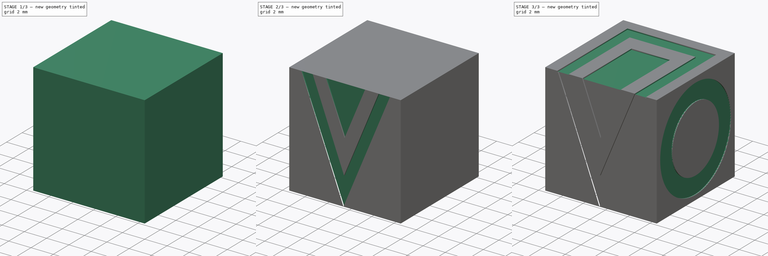
[diagram: build sequence overview — one tinted view per stage of 3, left to right]
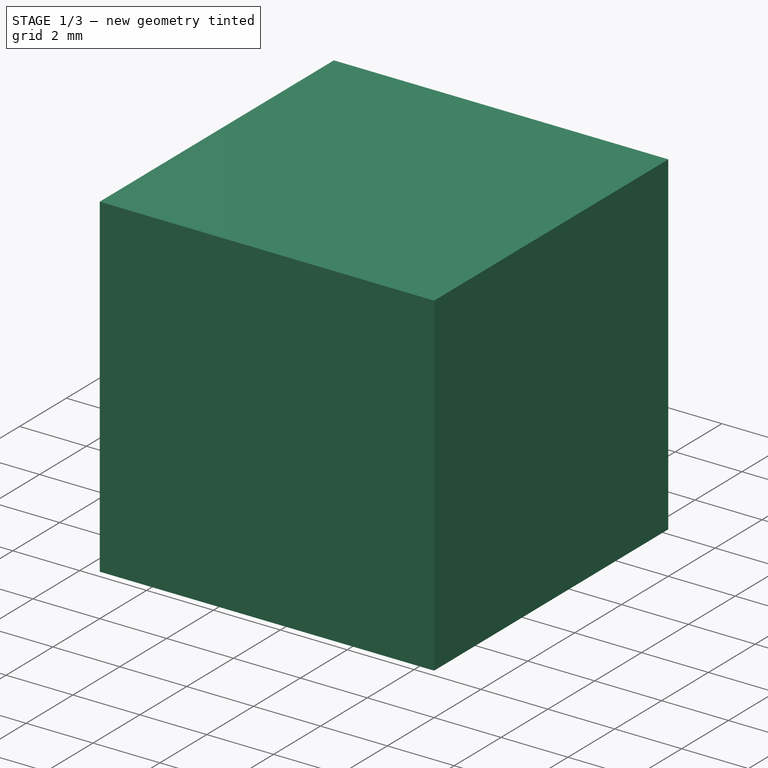
[diagram: stage 1 of 3 — iso view after this stage's code; geometry added in this stage tinted green]
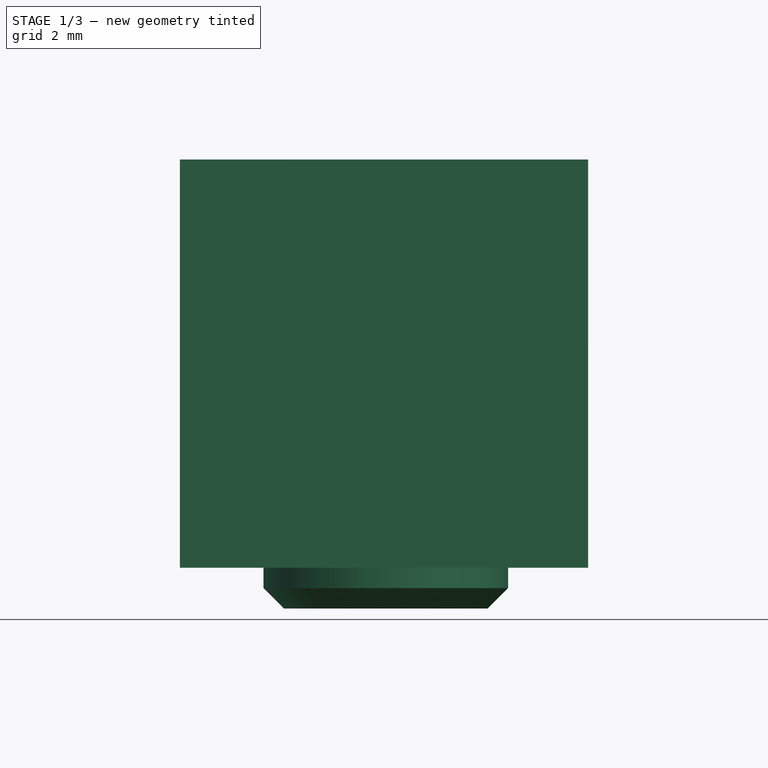
[diagram: stage 1 of 3 — front view after this stage's code; geometry added in this stage tinted green]
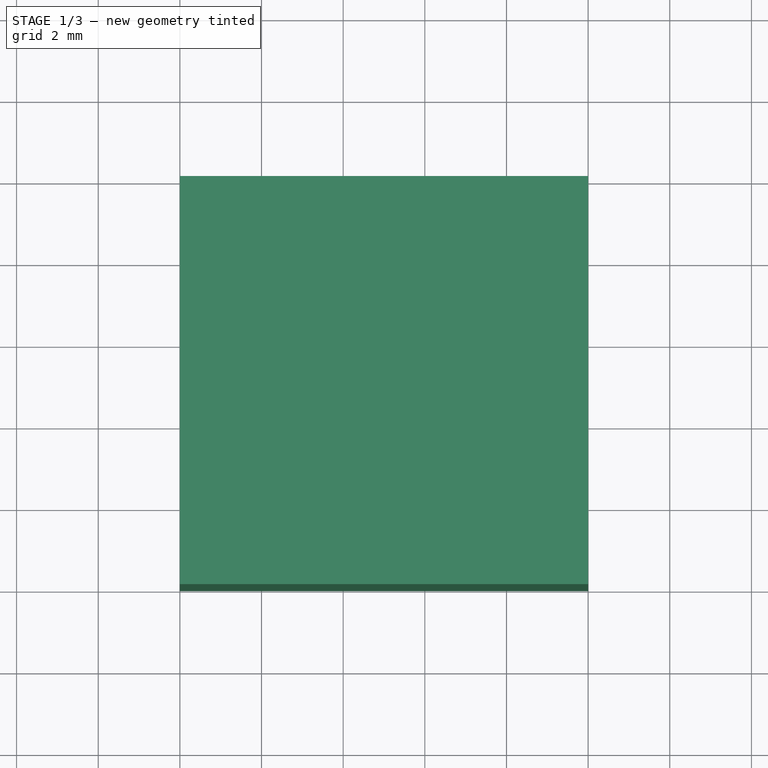
[diagram: stage 1 of 3 — top view after this stage's code; geometry added in this stage tinted green]
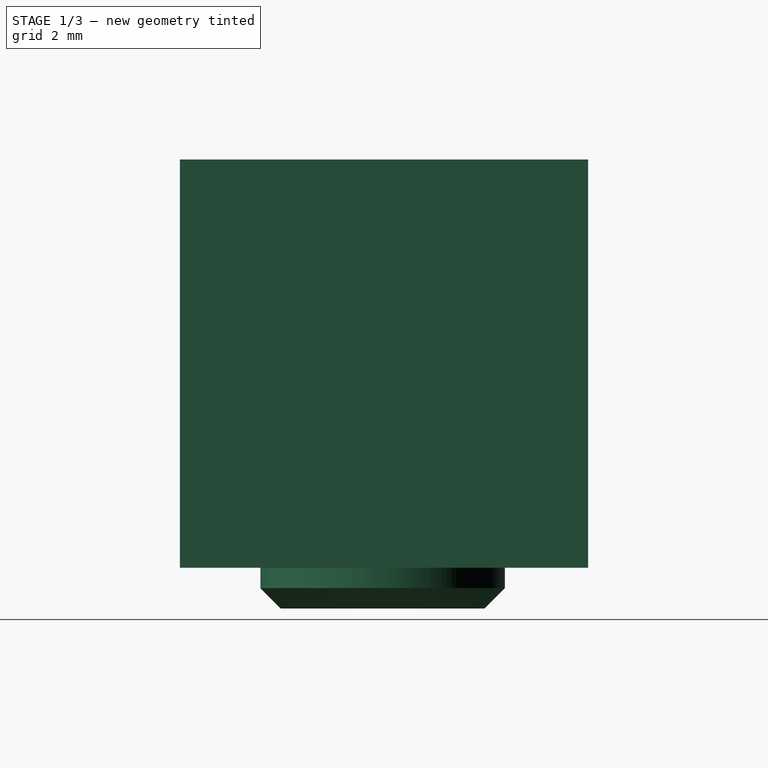
[diagram: stage 1 of 3 — right view after this stage's code; geometry added in this stage tinted green]
FCSTD DOCUMENT  (FreeCAD 0.16R6706 (Git))
Label: totem-head
License: All rights reserved
LicenseURL: http://en.wikipedia.org/wiki/All_rights_reserved
objects: Sketcher::SketchObject×6, PartDesign::Pocket×5, Part::Box×1, PartDesign::Pad×1, PartDesign::Chamfer×1
note: 20 computed .brp shape members not serialized (recipe doc carries the construction recipe); baked Part::Feature solids carry a one-line shape summary decoded from their .brp

FEATURE [Part::Box] Box  label="Cube"
  Height = 10
  Length = 10
  Width = 10
FEATURE [Sketcher::SketchObject] Sketch005
  Placement = pos=(0,0,0) rot=(1,0,0;3.14159rad)
  Support = -> Box [Face5]
  sketch-geometry (1):
    g0: Circle CenterX=5.04311 CenterY=-4.96659 CenterZ=0 NormalX=0 NormalY=0 NormalZ=1 Radius=2.99585
FEATURE [PartDesign::Pad] Pad
  Length = 1
  Length2 = 100
  Sketch = -> Sketch005
  Type = 0
FEATURE [PartDesign::Chamfer] Chamfer
  Base = -> Pad [Edge15]
  Size = 0.5
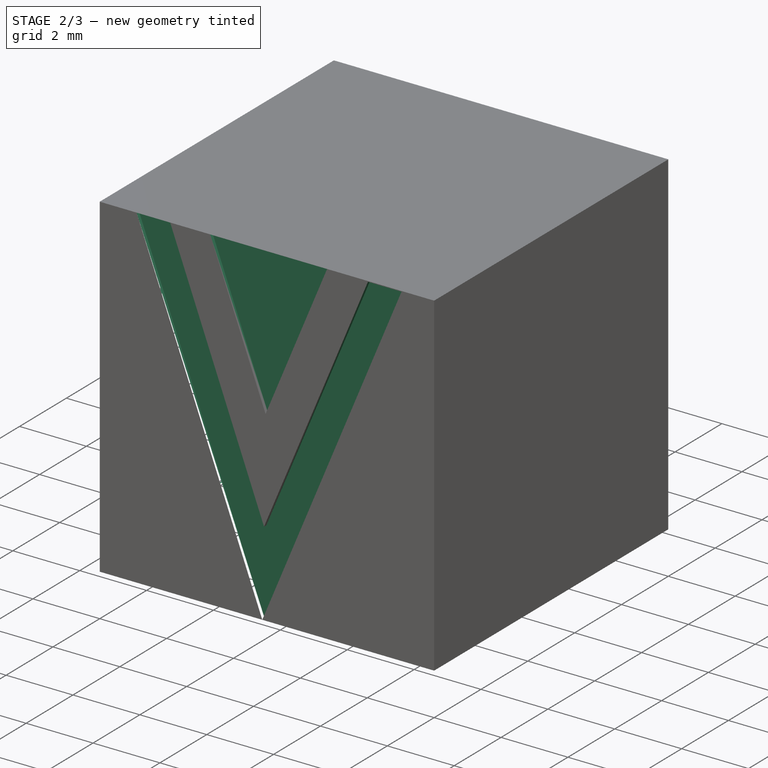
[diagram: stage 2 of 3 — iso view after this stage's code; geometry added in this stage tinted green]
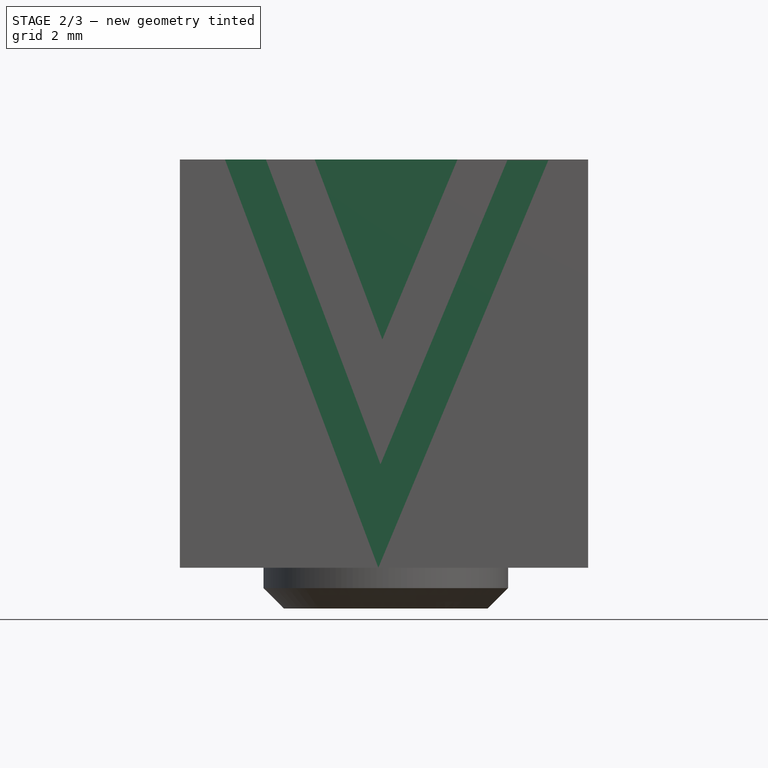
[diagram: stage 2 of 3 — front view after this stage's code; geometry added in this stage tinted green]
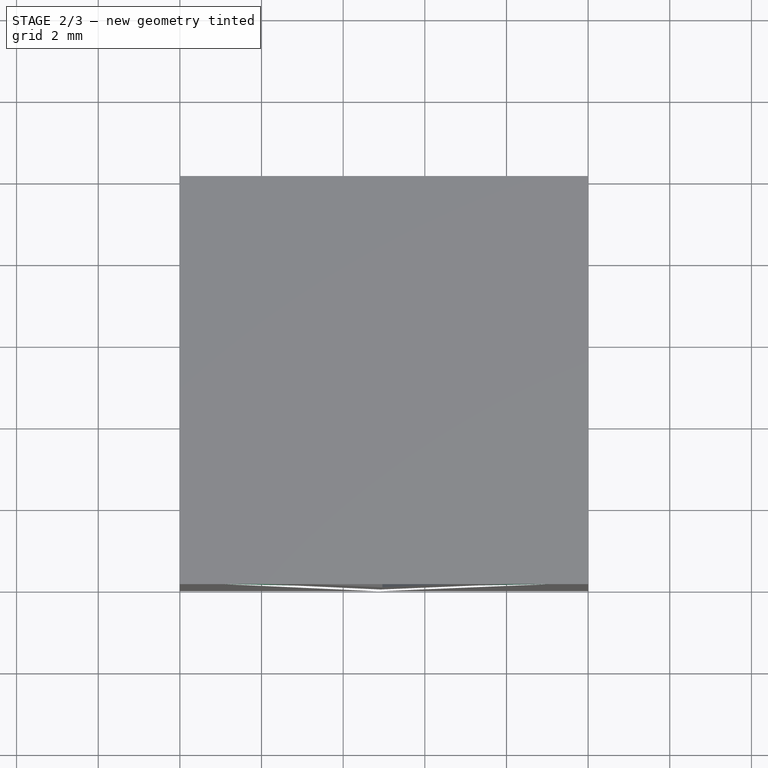
[diagram: stage 2 of 3 — top view after this stage's code; geometry added in this stage tinted green]
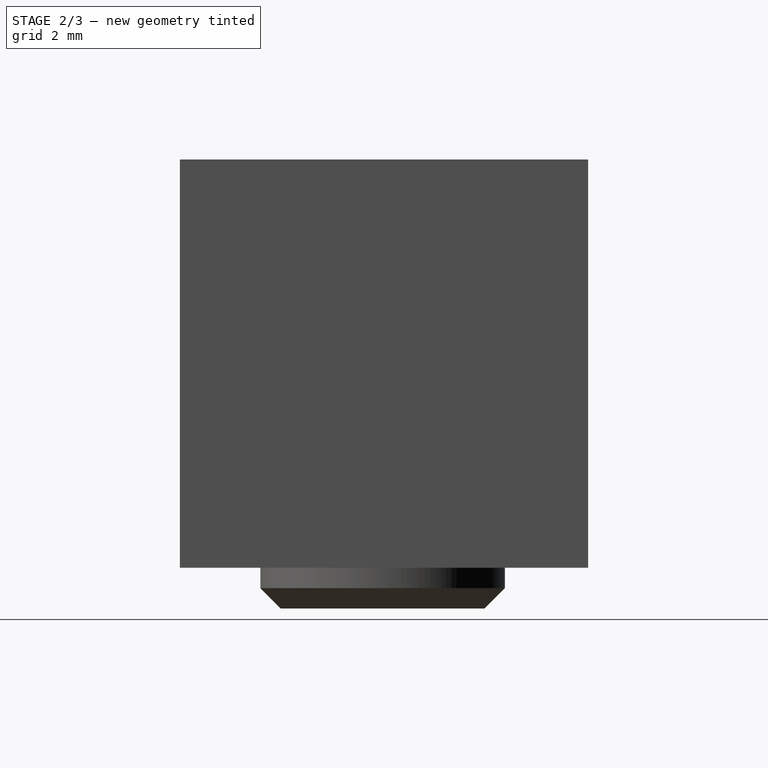
[diagram: stage 2 of 3 — right view after this stage's code; geometry added in this stage tinted green]
FEATURE [Sketcher::SketchObject] Sketch  label="Front"
  Placement = pos=(0,0,0) rot=(1,0,0;1.5708rad)
  Support = -> Chamfer [Face7]
  sketch-geometry (9):
    g0: LineSegment StartX=1.10375 StartY=9.99866 StartZ=0 EndX=4.86113 EndY=0 EndZ=0
    g1: LineSegment StartX=4.86113 StartY=0 StartZ=0 EndX=9.02559 EndY=9.98196 EndZ=0
    g2: LineSegment StartX=9.02559 StartY=9.98196 StartZ=0 EndX=8.02179 EndY=9.98196 EndZ=0
    g3: LineSegment StartX=8.02179 StartY=9.98196 StartZ=0 EndX=4.91355 EndY=2.53169 EndZ=0
    g4: LineSegment StartX=4.91355 StartY=2.53169 StartZ=0 EndX=2.10755 EndY=9.99866 EndZ=0
    g5: LineSegment StartX=2.10755 StartY=9.99866 StartZ=0 EndX=1.10375 EndY=9.99866 EndZ=0
    g6: LineSegment StartX=3.30286 StartY=9.99868 StartZ=0 EndX=4.95954 EndY=5.59015 EndZ=0
    g7: LineSegment StartX=4.95954 StartY=5.59015 StartZ=0 EndX=6.79877 EndY=9.99868 EndZ=0
    g8: LineSegment StartX=6.79877 StartY=9.99868 StartZ=0 EndX=3.30286 EndY=9.99868 EndZ=0
  constraints (18):
    c: PointOnObject(g0,g-1)
    c: Coincident(g0,g1)
    c: Coincident(g1,g2)
    c: Horizontal(g2)
    c: Coincident(g2,g3)
    c: Coincident(g3,g4)
    c: Coincident(g4,g5)
    c: Coincident(g5,g0)
    c: Horizontal(g5)
    c: Coincident(g6,g7)
    c: Coincident(g7,g8)
    c: Coincident(g8,g6)
    c: Horizontal(g8)
    c: Equal(g5,g2)
    c: Parallel(g4,g0)
    c: Parallel(g3,g1)
    c: Parallel(g6,g4)
    c: Parallel(g7,g3)
FEATURE [PartDesign::Pocket] Pocket
  Length = 0.1
  Sketch = -> Sketch
  Type = 0
FEATURE [Sketcher::SketchObject] Sketch002  label="Side A"
  Placement = pos=(0,0,0) rot=(0.57735,-0.57735,-0.57735;2.0944rad)
  Support = -> Pocket [Face5]
  sketch-geometry (2):
    g0: Circle CenterX=-5.03441 CenterY=4.9752 CenterZ=0 NormalX=0 NormalY=0 NormalZ=1 Radius=4.47581
    g1: Circle CenterX=-5.03441 CenterY=4.9752 CenterZ=0 NormalX=0 NormalY=0 NormalZ=1 Radius=2.99417
  constraints (1):
    c: Coincident(g1,g0)
FEATURE [PartDesign::Pocket] Pocket001
  Length = 0.1
  Sketch = -> Sketch002
  Type = 0
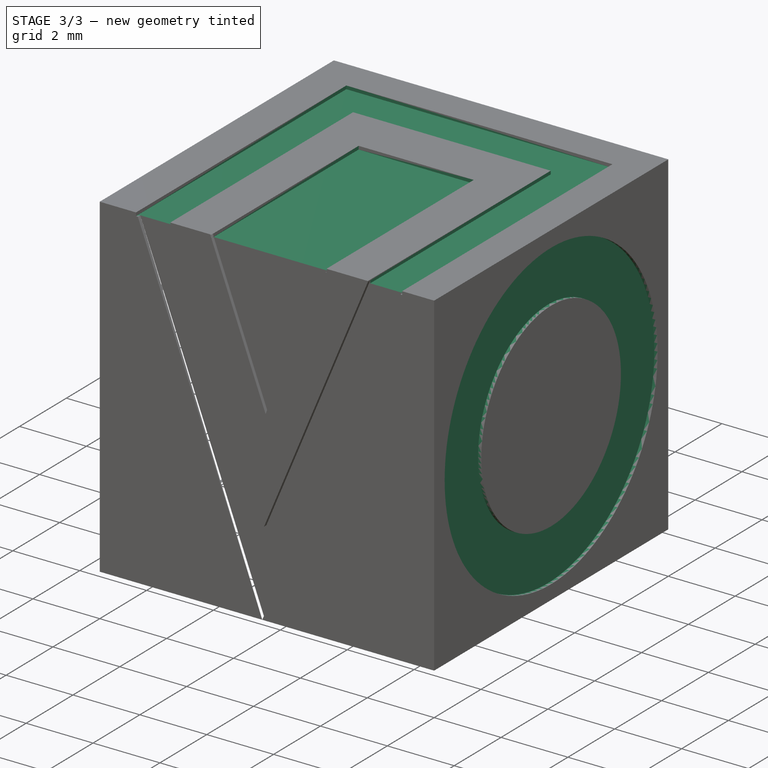
[diagram: stage 3 of 3 — iso view after this stage's code; geometry added in this stage tinted green]
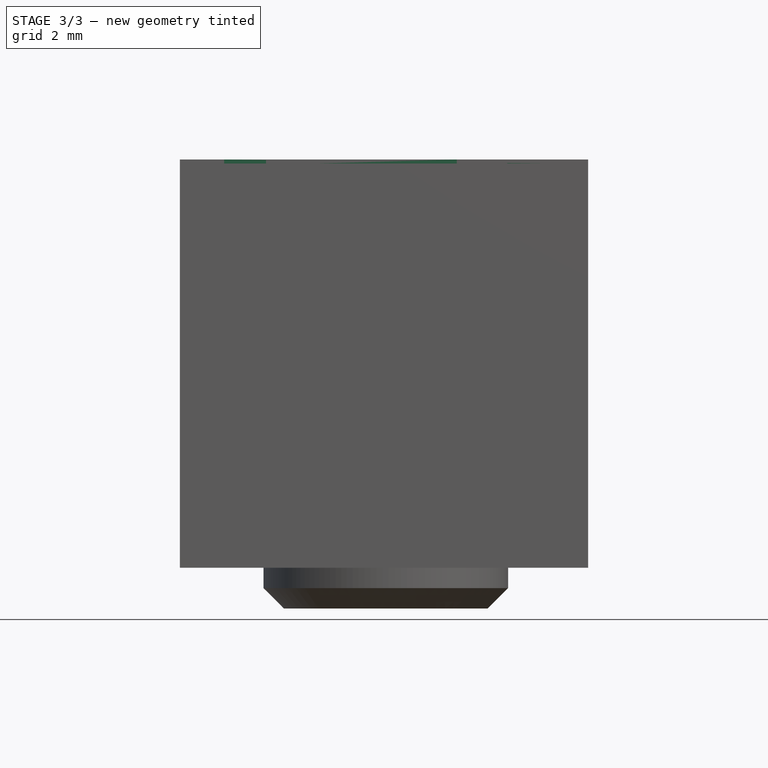
[diagram: stage 3 of 3 — front view after this stage's code; geometry added in this stage tinted green]
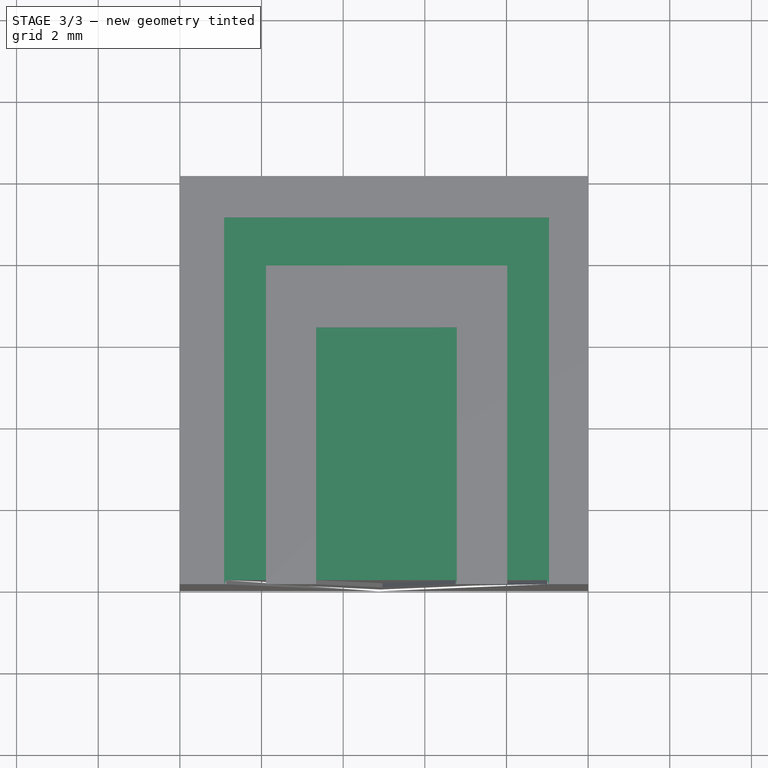
[diagram: stage 3 of 3 — top view after this stage's code; geometry added in this stage tinted green]
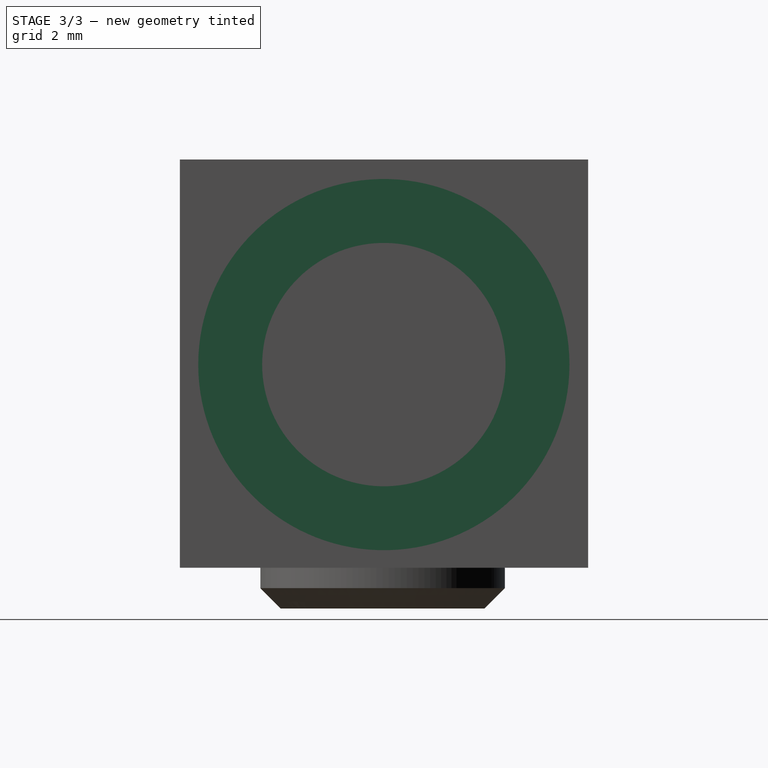
[diagram: stage 3 of 3 — right view after this stage's code; geometry added in this stage tinted green]
FEATURE [Sketcher::SketchObject] Sketch003  label="Side B"
  Placement = pos=(10,0,0) rot=(0.57735,0.57735,0.57735;2.0944rad)
  Support = -> Pocket001 [Face8]
  sketch-geometry (2):
    g0: Circle CenterX=4.99622 CenterY=4.9752 CenterZ=0 NormalX=0 NormalY=0 NormalZ=1 Radius=4.54676
    g1: Circle CenterX=4.99622 CenterY=4.9752 CenterZ=0 NormalX=0 NormalY=0 NormalZ=1 Radius=2.98075
  constraints (1):
    c: Coincident(g1,g0)
FEATURE [PartDesign::Pocket] Pocket002
  Length = 0.1
  Sketch = -> Sketch003
  Type = 0
FEATURE [Sketcher::SketchObject] Sketch001  label="Top"
  Placement = pos=(0,0,10) rot=(0,0,1;0rad)
  Support = -> Pocket002 [Face9]
  sketch-geometry (12):
    g0: LineSegment StartX=1.08487 StartY=0 StartZ=0 EndX=1.08487 EndY=8.98187 EndZ=0
    g1: LineSegment StartX=1.08487 StartY=8.98187 StartZ=0 EndX=9.04254 EndY=8.98187 EndZ=0
    g2: LineSegment StartX=9.04254 StartY=8.98187 StartZ=0 EndX=9.04254 EndY=0 EndZ=0
    g3: LineSegment StartX=9.04254 StartY=0 StartZ=0 EndX=8.01867 EndY=0 EndZ=0
    g4: LineSegment StartX=8.01867 StartY=0 StartZ=0 EndX=8.01867 EndY=7.80777 EndZ=0
    g5: LineSegment StartX=8.01867 StartY=7.80777 StartZ=0 EndX=2.10874 EndY=7.80777 EndZ=0
    g6: LineSegment StartX=2.10874 StartY=7.80777 StartZ=0 EndX=2.10874 EndY=0 EndZ=0
    g7: LineSegment StartX=2.10874 StartY=0 StartZ=0 EndX=1.08487 EndY=0 EndZ=0
    g8: LineSegment StartX=3.33803 StartY=0 StartZ=0 EndX=3.33803 EndY=6.28996 EndZ=0
    g9: LineSegment StartX=3.33803 StartY=6.28996 StartZ=0 EndX=6.7806 EndY=6.28996 EndZ=0
    g10: LineSegment StartX=6.7806 StartY=6.28996 StartZ=0 EndX=6.7806 EndY=0 EndZ=0
    g11: LineSegment StartX=6.7806 StartY=0 StartZ=0 EndX=3.33803 EndY=0 EndZ=0
  constraints (31):
    c: PointOnObject(g0,g-1)
    c: Vertical(g0)
    c: Coincident(g0,g1)
    c: Horizontal(g1)
    c: Coincident(g1,g2)
    c: PointOnObject(g2,g-1)
    c: Vertical(g2)
    c: Coincident(g2,g3)
    c: PointOnObject(g3,g-1)
    c: Horizontal(g3)
    c: Coincident(g3,g4)
    c: Vertical(g4)
    c: Coincident(g4,g5)
    c: Horizontal(g5)
    c: Coincident(g5,g6)
    c: PointOnObject(g6,g-1)
    c: Vertical(g6)
    c: Coincident(g6,g7)
    c: Coincident(g7,g0)
    c: PointOnObject(g8,g-1)
    c: Vertical(g8)
    c: Coincident(g8,g9)
    c: Horizontal(g9)
    c: Coincident(g9,g10)
    c: PointOnObject(g10,g-1)
    c: Coincident(g10,g11)
    c: Coincident(g11,g8)
    c: Vertical(g10)
    c: Equal(g3,g7)
    c: Equal(g9,g11)
    c: Equal(g0,g2)
FEATURE [PartDesign::Pocket] Pocket003
  Length = 0.1
  Sketch = -> Sketch001
  Type = 0
FEATURE [Sketcher::SketchObject] Sketch004  label="Back"
  Placement = pos=(0,10,0) rot=(0,0.707107,0.707107;3.14159rad)
  Support = -> Pocket003 [Face6]
  sketch-geometry (8):
    g0: LineSegment StartX=-9.03172 StartY=0.0203868 StartZ=0 EndX=-9.03172 EndY=9.14773 EndZ=0
    g1: LineSegment StartX=-9.03172 StartY=9.14773 StartZ=0 EndX=-1.13273 EndY=9.14773 EndZ=0
    g2: LineSegment StartX=-1.13273 StartY=9.14773 StartZ=0 EndX=-1.13273 EndY=0.0203868 EndZ=0
    g3: LineSegment StartX=-1.13273 StartY=0.0203868 StartZ=0 EndX=-2.17766 EndY=0.0203868 EndZ=0
    g4: LineSegment StartX=-2.17766 StartY=0.0203868 StartZ=0 EndX=-2.17766 EndY=8.15491 EndZ=0
    g5: LineSegment StartX=-2.17766 StartY=8.15491 StartZ=0 EndX=-7.98678 EndY=8.15491 EndZ=0
    g6: LineSegment StartX=-7.98678 StartY=8.15491 StartZ=0 EndX=-7.98678 EndY=0.0203868 EndZ=0
    g7: LineSegment StartX=-7.98678 StartY=0.0203868 StartZ=0 EndX=-9.03172 EndY=0.0203868 EndZ=0
  constraints (19):
    c: Vertical(g0)
    c: Coincident(g0,g1)
    c: Horizontal(g1)
    c: Coincident(g1,g2)
    c: Vertical(g2)
    c: Coincident(g2,g3)
    c: Horizontal(g3)
    c: Coincident(g3,g4)
    c: Vertical(g4)
    c: Coincident(g4,g5)
    c: Horizontal(g5)
    c: Coincident(g5,g6)
    c: Vertical(g6)
    c: Coincident(g6,g7)
    c: Coincident(g7,g0)
    c: Horizontal(g7)
    c: Equal(g7,g3)
    c: Equal(g0,g2)
    c: Equal(g6,g4)
FEATURE [PartDesign::Pocket] Pocket004
  Length = 0.1
  Sketch = -> Sketch004
  Type = 0
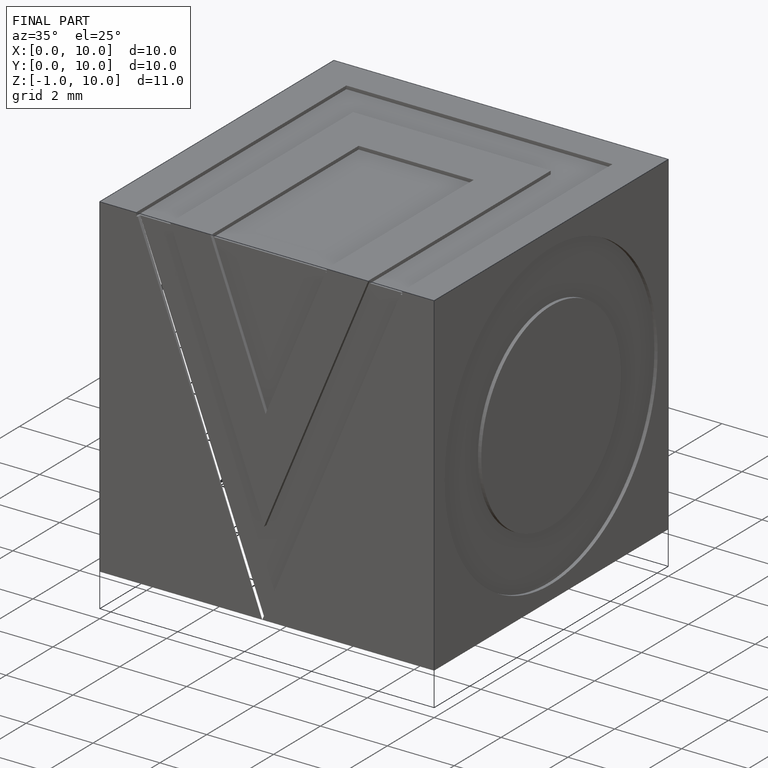
[diagram: finished part — iso view with bounding-box wireframe]
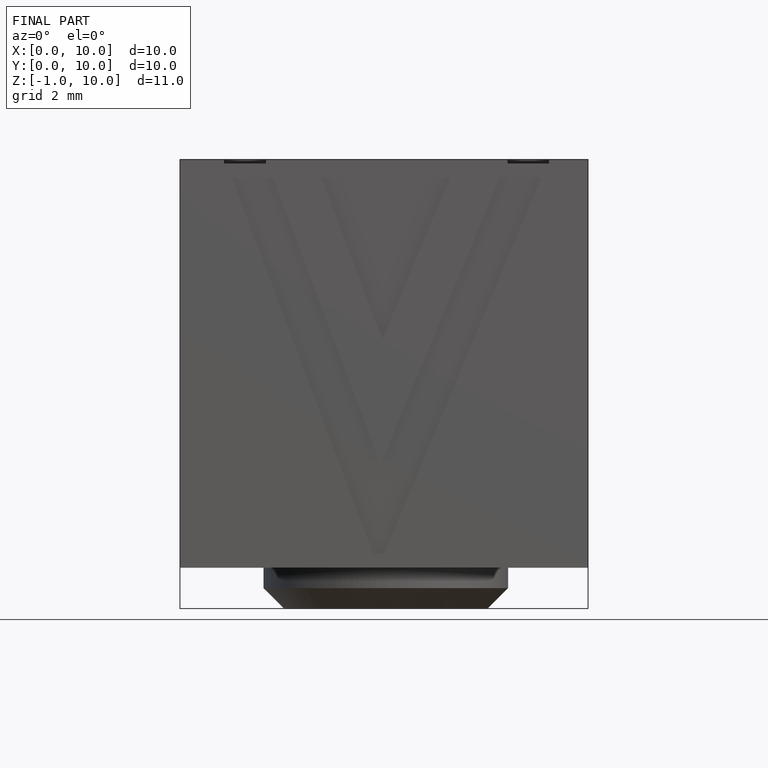
[diagram: finished part — front view with bounding-box wireframe]
